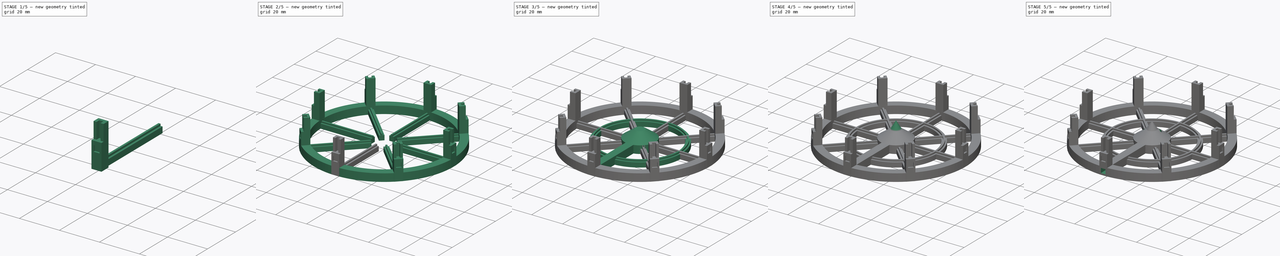
[diagram: build sequence overview — one tinted view per stage of 5, left to right]
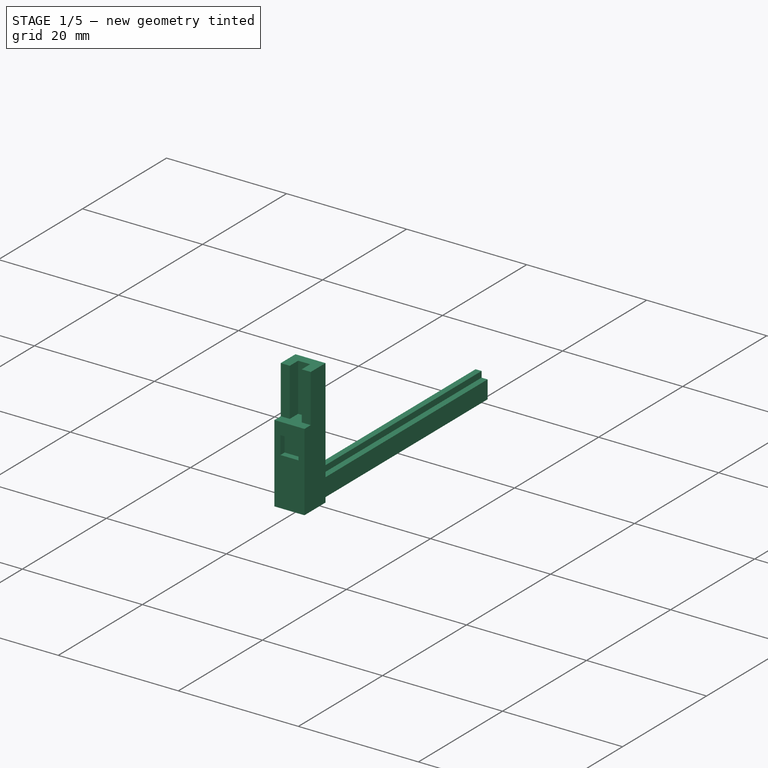
[diagram: stage 1 of 5 — iso view after this stage's code; geometry added in this stage tinted green]
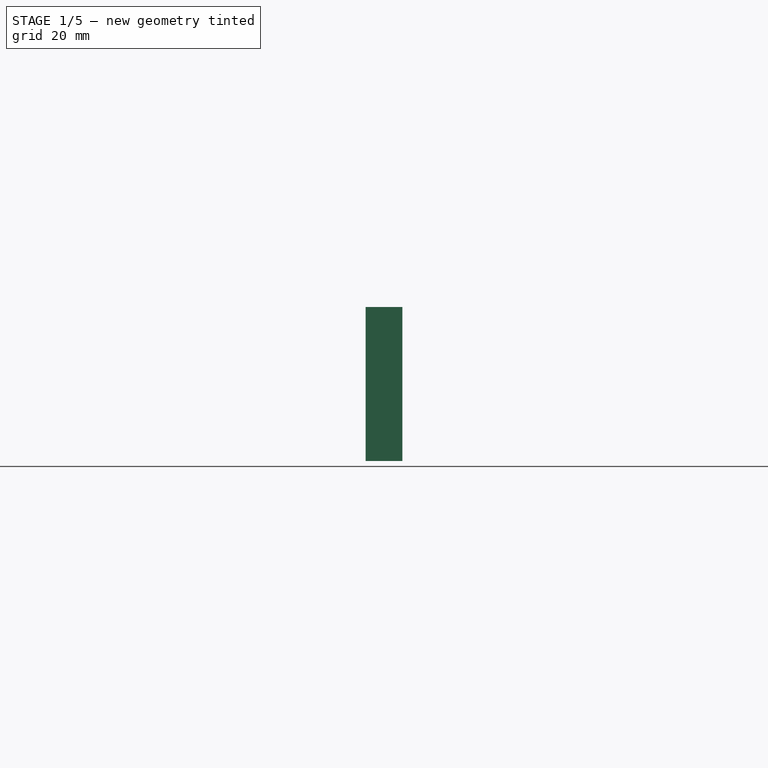
[diagram: stage 1 of 5 — front view after this stage's code; geometry added in this stage tinted green]
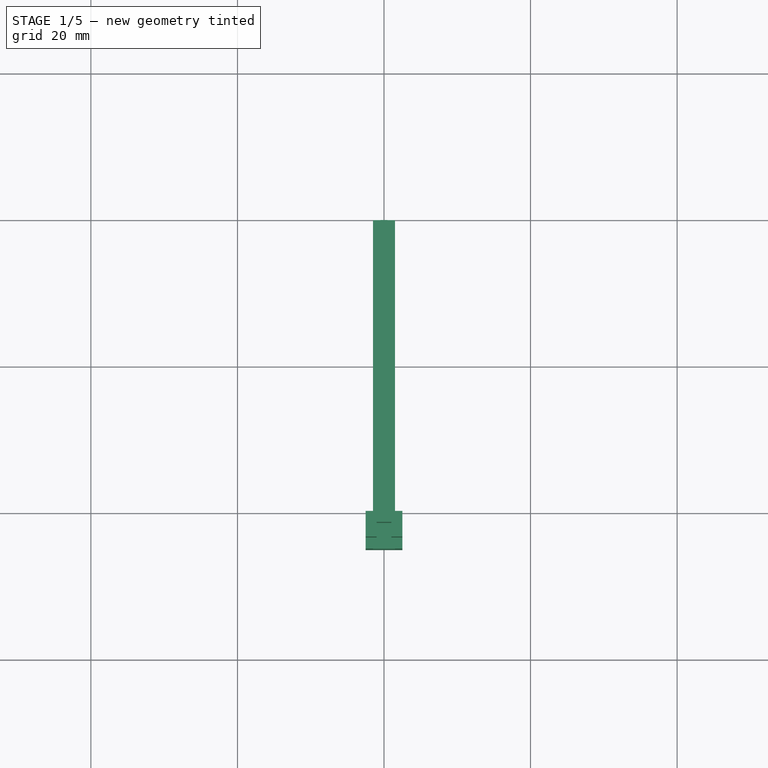
[diagram: stage 1 of 5 — top view after this stage's code; geometry added in this stage tinted green]
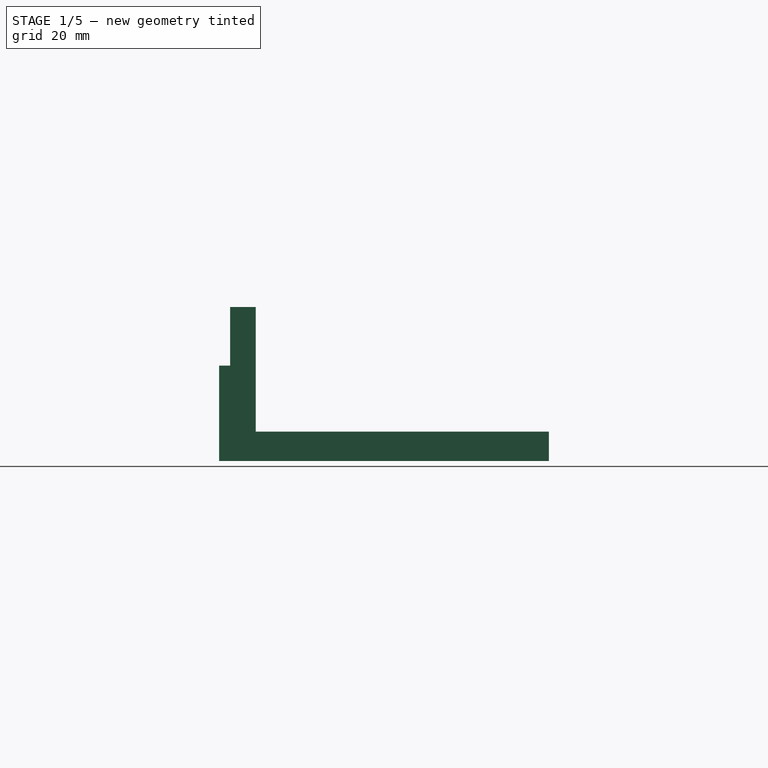
[diagram: stage 1 of 5 — right view after this stage's code; geometry added in this stage tinted green]
FCSTD DOCUMENT  (FreeCAD 0.18.4R)
Label: impeller-box-upside
License: All rights reserved
LicenseURL: http://en.wikipedia.org/wiki/All_rights_reserved
objects: Sketcher::SketchObject×21, PartDesign::Pad×11, PartDesign::Pocket×6, PartDesign::Body×4, PartDesign::AdditiveCone×2, PartDesign::FeatureBase×2, Part::FeaturePython×1, Part::Fuse×1
note: 67 computed .brp shape members not serialized (recipe doc carries the construction recipe); baked Part::Feature solids carry a one-line shape summary decoded from their .brp

FEATURE [PartDesign::Body] Body  label="center"
  Group = -> [Sketch,Pad,Cone,Cone001]
  Origin = -> Origin
  Tip = -> Cone001
FEATURE [Sketcher::SketchObject] Sketch001
  MapMode = 5
  Placement = pos=(0,0,0) rot=(1,0,0;1.5708rad)
  Support = -> [XZ_Plane001]
  sketch-geometry (4):
    g0: LineSegment StartX=-1.5 StartY=3 StartZ=0 EndX=1.5 EndY=3 EndZ=0
    g1: LineSegment StartX=1.5 StartY=3 StartZ=0 EndX=1.5 EndY=0 EndZ=0
    g2: LineSegment StartX=1.5 StartY=0 StartZ=0 EndX=-1.5 EndY=0 EndZ=0
    g3: LineSegment StartX=-1.5 StartY=0 StartZ=0 EndX=-1.5 EndY=3 EndZ=0
  constraints (12):
    c: Coincident(g0,g1)
    c: Coincident(g1,g2)
    c: Coincident(g2,g3)
    c: Coincident(g3,g0)
    c: Horizontal(g0)
    c: Horizontal(g2)
    c: Vertical(g1)
    c: Vertical(g3)
    c: DistanceX(g0,g0) = 3
    c: DistanceX(g2,g-1) = 1.5
    c: DistanceY(g1,g1) = 3
    c: DistanceY(g-1,g2) = 0
FEATURE [PartDesign::Pad] Pad001
  Length = 45
  Length2 = 100
  Placement = pos=(0,0,0) rot=(1,0,0;1.5708rad)
  Profile = -> Sketch001
  Type = 0
FEATURE [Sketcher::SketchObject] Sketch002
  MapMode = 5
  Placement = pos=(0,1.3e-15,3) rot=(0,0,1;3.14159rad)
  Support = -> [Pad001]
  sketch-geometry (4):
    g0: LineSegment StartX=-0.5 StartY=45 StartZ=0 EndX=0.5 EndY=45 EndZ=0
    g1: LineSegment StartX=0.5 StartY=45 StartZ=0 EndX=0.5 EndY=0 EndZ=0
    g2: LineSegment StartX=0.5 StartY=0 StartZ=0 EndX=-0.5 EndY=0 EndZ=0
    g3: LineSegment StartX=-0.5 StartY=0 StartZ=0 EndX=-0.5 EndY=45 EndZ=0
  constraints (12):
    c: Coincident(g0,g1)
    c: Coincident(g1,g2)
    c: Coincident(g2,g3)
    c: Coincident(g3,g0)
    c: Horizontal(g0)
    c: Horizontal(g2)
    c: Vertical(g1)
    c: Vertical(g3)
    c: DistanceX(g0,g0) = 1
    c: DistanceX(g2,g-1) = 0.5
    c: DistanceY(g1,g1) = 45
    c: DistanceY(g-1,g1) = 0
FEATURE [PartDesign::Pad] Pad002
  BaseFeature = -> Pad001
  Length = 1
  Length2 = 100
  Placement = pos=(0,0,0) rot=(1,0,0;1.5708rad)
  Profile = -> Sketch002
  Type = 0
FEATURE [Sketcher::SketchObject] Sketch003
  MapMode = 5
  Support = -> [XY_Plane001]
  sketch-geometry (4):
    g0: LineSegment StartX=-2.5 StartY=-40 StartZ=0 EndX=2.5 EndY=-40 EndZ=0
    g1: LineSegment StartX=2.5 StartY=-40 StartZ=0 EndX=2.5 EndY=-45 EndZ=0
    g2: LineSegment StartX=2.5 StartY=-45 StartZ=0 EndX=-2.5 EndY=-45 EndZ=0
    g3: LineSegment StartX=-2.5 StartY=-45 StartZ=0 EndX=-2.5 EndY=-40 EndZ=0
  constraints (12):
    c: Coincident(g0,g1)
    c: Coincident(g1,g2)
    c: Coincident(g2,g3)
    c: Coincident(g3,g0)
    c: Horizontal(g0)
    c: Horizontal(g2)
    c: Vertical(g1)
    c: Vertical(g3)
    c: DistanceX(g0,g0) = 5
    c: DistanceX(g-1,g0) = 2.5
    c: DistanceY(g1,g1) = 5
    c: DistanceY(g1,g-1) = 45
FEATURE [PartDesign::Pad] Pad003
  BaseFeature = -> Pad002
  Length = 13
  Length2 = 100
  Placement = pos=(0,0,0) rot=(1,0,0;1.5708rad)
  Profile = -> Sketch003
  Type = 0
FEATURE [Sketcher::SketchObject] Sketch004
  ExternalGeometry = -> [Pad003]
  MapMode = 5
  Placement = pos=(0,0,13) rot=(0,0,1;3.14159rad)
  Support = -> [Pad003]
  sketch-geometry (8):
    g0: LineSegment StartX=-2.5 StartY=40 StartZ=0 EndX=2.5 EndY=40 EndZ=0
    g1: LineSegment StartX=2.5 StartY=40 StartZ=0 EndX=2.5 EndY=43 EndZ=0
    g2: LineSegment StartX=2.5 StartY=43 StartZ=0 EndX=1 EndY=43 EndZ=0
    g3: LineSegment StartX=1 StartY=43 StartZ=0 EndX=1 EndY=41 EndZ=0
    g4: LineSegment StartX=1 StartY=41 StartZ=0 EndX=-1 EndY=41 EndZ=0
    g5: LineSegment StartX=-1 StartY=41 StartZ=0 EndX=-1 EndY=43 EndZ=0
    g6: LineSegment StartX=-1 StartY=43 StartZ=0 EndX=-2.5 EndY=43 EndZ=0
    g7: LineSegment StartX=-2.5 StartY=43 StartZ=0 EndX=-2.5 EndY=40 EndZ=0
  constraints (23):
    c: Coincident(g0,g1)
    c: Coincident(g1,g2)
    c: Coincident(g2,g3)
    c: Coincident(g3,g4)
    c: Coincident(g4,g5)
    c: Coincident(g5,g6)
    c: Coincident(g6,g7)
    c: Coincident(g7,g0)
    c: Coincident(g0,g-3)
    c: Vertical(g1)
    c: Vertical(g7)
    c: Vertical(g5)
    c: Vertical(g3)
    c: Horizontal(g2)
    c: Horizontal(g4)
    c: Horizontal(g6)
    c: Horizontal(g0)
    c: DistanceX(g0,g0) = 5
    c: DistanceX(g2,g2) = 1.5
    c: DistanceX(g6,g6) = 1.5
    c: DistanceY(g1,g1) = 3
    c: DistanceY(g7,g7) = 3
    c: DistanceY(g3,g3) = 2
FEATURE [Sketcher::SketchObject] Sketch005
  ExternalGeometry = -> [Pad003]
  MapMode = 5
  Placement = pos=(0,0,13) rot=(0,0,1;3.14159rad)
  Support = -> [Pad003]
  sketch-geometry (8):
    g0: LineSegment StartX=1 StartY=41.5 StartZ=0 EndX=1 EndY=43.5 EndZ=0
    g1: LineSegment StartX=1 StartY=43.5 StartZ=0 EndX=2.5 EndY=43.5 EndZ=0
    g2: LineSegment StartX=2.5 StartY=43.5 StartZ=0 EndX=2.5 EndY=40 EndZ=0
    g3: LineSegment StartX=2.5 StartY=40 StartZ=0 EndX=-2.5 EndY=40 EndZ=0
    g4: LineSegment StartX=-2.5 StartY=40 StartZ=0 EndX=-2.5 EndY=43.5 EndZ=0
    g5: LineSegment StartX=-2.5 StartY=43.5 StartZ=0 EndX=-1 EndY=43.5 EndZ=0
    g6: LineSegment StartX=-1 StartY=43.5 StartZ=0 EndX=-1 EndY=41.5 EndZ=0
    g7: LineSegment StartX=-1 StartY=41.5 StartZ=0 EndX=1 EndY=41.5 EndZ=0
  constraints (23):
    c: Coincident(g0,g1)
    c: Coincident(g1,g2)
    c: Coincident(g2,g3)
    c: Coincident(g3,g4)
    c: Coincident(g4,g5)
    c: Coincident(g5,g6)
    c: Coincident(g6,g7)
    c: Coincident(g7,g0)
    c: Coincident(g3,g-3)
    c: Vertical(g2)
    c: Vertical(g4)
    c: Vertical(g6)
    c: Vertical(g0)
    c: Horizontal(g1)
    c: Horizontal(g3)
    c: Horizontal(g7)
    c: Horizontal(g5)
    c: DistanceY(g2,g2) = 3.5
    c: DistanceY(g4,g4) = 3.5
    c: DistanceY(g6,g6) = 2
    c: DistanceX(g3,g3) = 5
    c: DistanceX(g5,g5) = 1.5
    c: DistanceX(g1,g1) = 1.5
FEATURE [PartDesign::Pad] Pad004
  BaseFeature = -> Pad003
  Length = 8
  Length2 = 100
  Placement = pos=(0,0,0) rot=(1,0,0;1.5708rad)
  Profile = -> Sketch005
  Type = 0
FEATURE [Sketcher::SketchObject] Sketch006
  ExternalGeometry = -> [Pad004]
  MapMode = 5
  Placement = pos=(0,-45,9.9e-15) rot=(1,0,0;1.5708rad)
  Support = -> [Pad004]
  sketch-geometry (4):
    g0: LineSegment StartX=-1.5 StartY=11 StartZ=0 EndX=1.5 EndY=11 EndZ=0
    g1: LineSegment StartX=1.5 StartY=11 StartZ=0 EndX=1.5 EndY=8 EndZ=0
    g2: LineSegment StartX=1.5 StartY=8 StartZ=0 EndX=-1.5 EndY=8 EndZ=0
    g3: LineSegment StartX=-1.5 StartY=8 StartZ=0 EndX=-1.5 EndY=11 EndZ=0
  constraints (12):
    c: Coincident(g0,g1)
    c: Coincident(g1,g2)
    c: Coincident(g2,g3)
    c: Coincident(g3,g0)
    c: Horizontal(g0)
    c: Horizontal(g2)
    c: Vertical(g1)
    c: Vertical(g3)
    c: DistanceY(g1,g1) = 3
    c: DistanceY(g0,g-3) = 2
    c: DistanceX(g0,g-3) = 1
    c: DistanceX(g0,g0) = 3
FEATURE [PartDesign::Pocket] Pocket
  BaseFeature = -> Pad004
  Length = 1
  Length2 = 100
  Placement = pos=(0,0,0) rot=(1,0,0;1.5708rad)
  Profile = -> Sketch006
  Type = 0
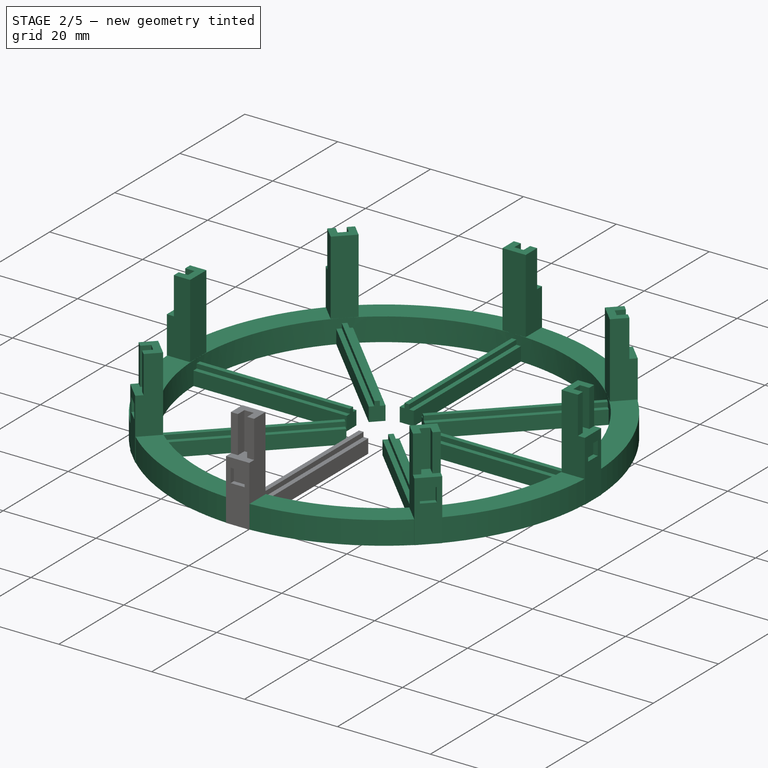
[diagram: stage 2 of 5 — iso view after this stage's code; geometry added in this stage tinted green]
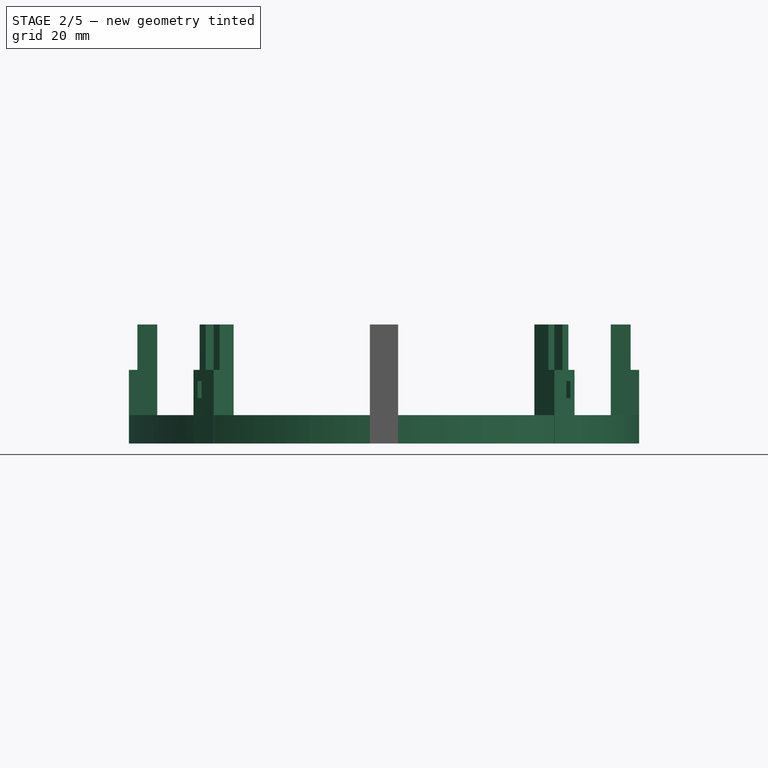
[diagram: stage 2 of 5 — front view after this stage's code; geometry added in this stage tinted green]
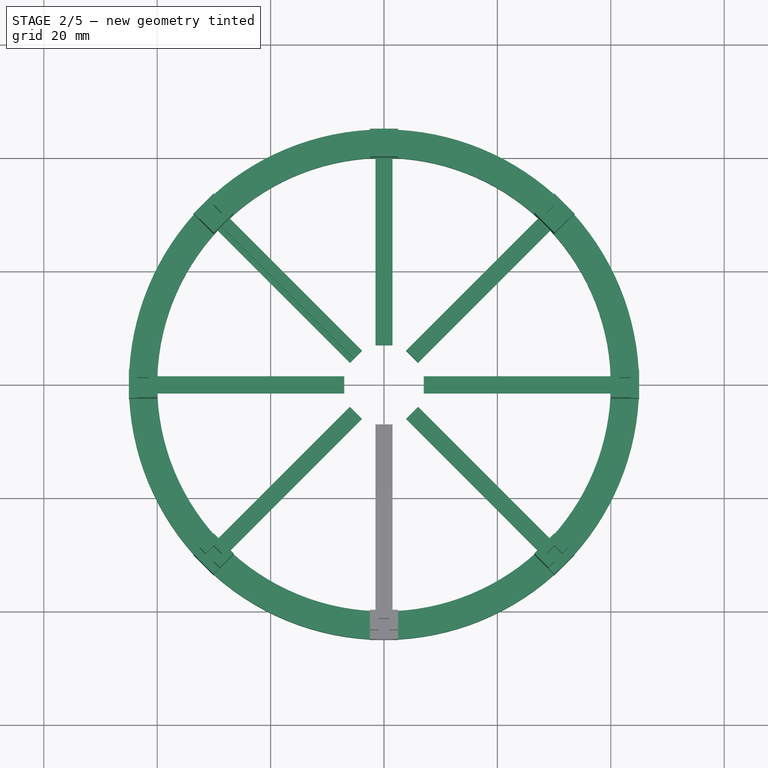
[diagram: stage 2 of 5 — top view after this stage's code; geometry added in this stage tinted green]
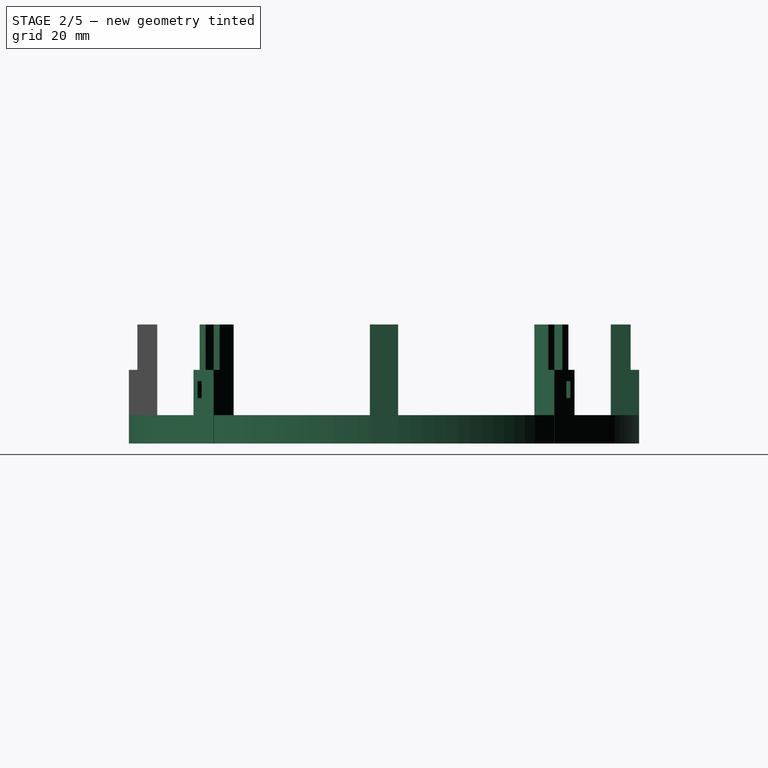
[diagram: stage 2 of 5 — right view after this stage's code; geometry added in this stage tinted green]
FEATURE [Sketcher::SketchObject] Sketch007
  MapMode = 5
  Placement = pos=(2.5,0,0) rot=(0.707107,0,0.707107;3.14159rad)
  Support = -> [Pocket]
FEATURE [Sketcher::SketchObject] Sketch008
  MapMode = 5
  Placement = pos=(0,-45,9.9e-15) rot=(1,0,0;1.5708rad)
  Support = -> [Pocket]
FEATURE [Sketcher::SketchObject] Sketch009
  MapMode = 5
  Support = -> [XY_Plane001]
  sketch-geometry (4):
    g0: LineSegment StartX=1.5 StartY=0 StartZ=0 EndX=-1.5 EndY=0 EndZ=0
    g1: LineSegment StartX=-1.5 StartY=0 StartZ=0 EndX=-1.5 EndY=-7 EndZ=0
    g2: LineSegment StartX=-1.5 StartY=-7 StartZ=0 EndX=1.5 EndY=-7 EndZ=0
    g3: LineSegment StartX=1.5 StartY=-7 StartZ=0 EndX=1.5 EndY=0 EndZ=0
  constraints (12):
    c: Coincident(g0,g1)
    c: Coincident(g1,g2)
    c: Coincident(g2,g3)
    c: Coincident(g3,g0)
    c: Horizontal(g0)
    c: Horizontal(g2)
    c: Vertical(g1)
    c: Vertical(g3)
    c: DistanceX(g0,g0) = 3
    c: DistanceY(g3,g3) = 7
    c: DistanceY(g0,g-1) = 0
    c: DistanceX(g0,g-1) = 1.5
FEATURE [PartDesign::Pocket] Pocket001
  BaseFeature = -> Pocket
  Length = 5
  Length2 = 100
  Placement = pos=(0,0,0) rot=(1,0,0;1.5708rad)
  Profile = -> Sketch009
  Reversed = true
  Type = 0
FEATURE [PartDesign::Body] Body001  label="edge"
  Group = -> [Sketch001,Pad001,Sketch002,Pad002,Sketch003,Pad003,Sketch004,Sketch005,Pad004,Sketch006,Pocket,Sketch007,Sketch008,Sketch009,Pocket001]
  Origin = -> Origin001
  Tip = -> Pocket001
FEATURE [Part::FeaturePython] Array  # Draft array (typed FeaturePython)
  Angle = 360
  ArrayType = 1
  Axis = (0,0,1)
  Base = -> Body001
  Center = (0,0,1)
  Fuse = false
  IntervalAxis = (0,0,0)
  IntervalX = (1,0,0)
  IntervalY = (0,1,0)
  IntervalZ = (0,0,1)
  NumberPolar = 8
  NumberX = 2
  NumberY = 2
  NumberZ = 1
FEATURE [PartDesign::FeatureBase] BaseFeature
  BaseFeature = -> Array
FEATURE [Sketcher::SketchObject] Sketch010
  MapMode = 5
  Support = -> [XY_Plane002]
  sketch-geometry (2):
    g0: Circle CenterX=0 CenterY=0 CenterZ=0 NormalX=0 NormalY=0 NormalZ=1 AngleXU=0 Radius=45
    g1: Circle CenterX=0 CenterY=0 CenterZ=0 NormalX=0 NormalY=0 NormalZ=1 AngleXU=0 Radius=40
  constraints (4):
    c: Coincident(g0,g-1)
    c: Coincident(g0,g1)
    c: Radius(g0) = 45
    c: Radius(g1) = 40
FEATURE [PartDesign::Pad] Pad005
  BaseFeature = -> BaseFeature
  Length = 5
  Length2 = 100
  Profile = -> Sketch010
  Type = 0
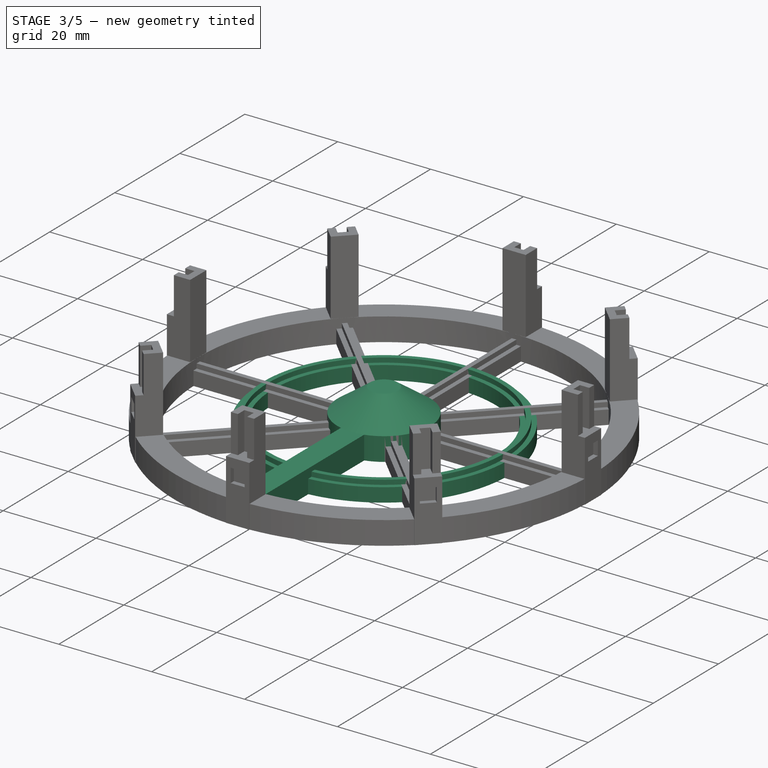
[diagram: stage 3 of 5 — iso view after this stage's code; geometry added in this stage tinted green]
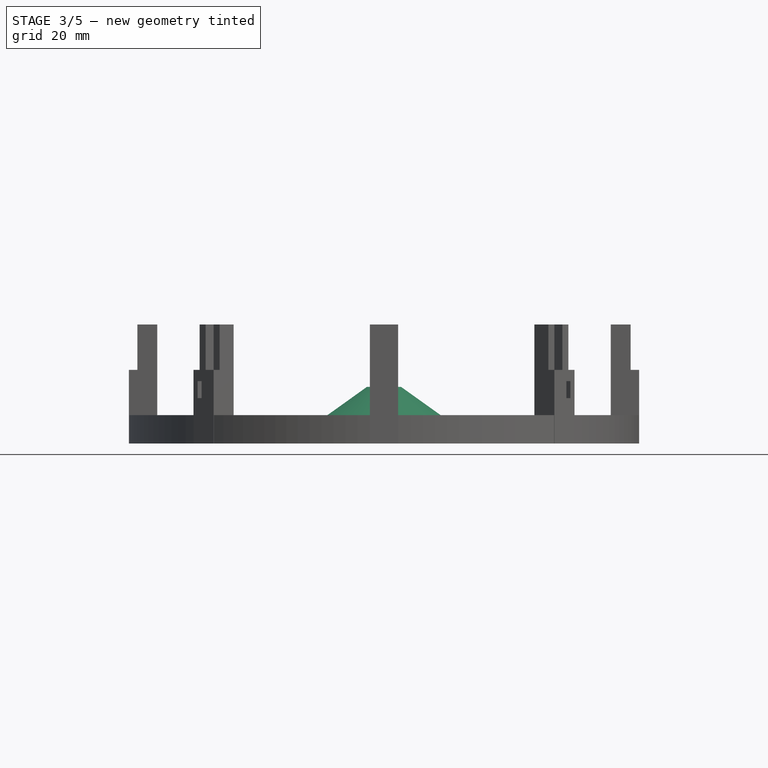
[diagram: stage 3 of 5 — front view after this stage's code; geometry added in this stage tinted green]
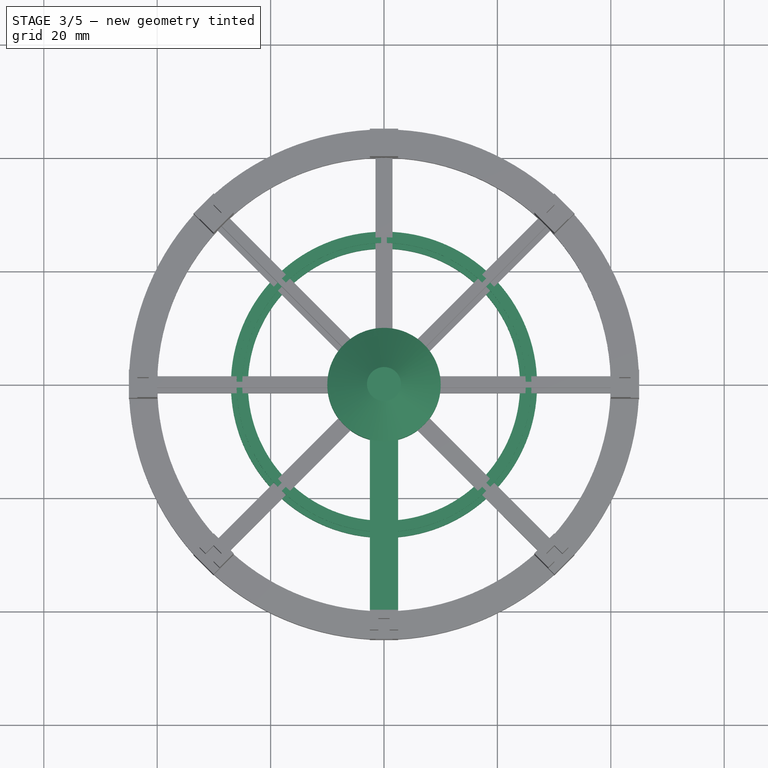
[diagram: stage 3 of 5 — top view after this stage's code; geometry added in this stage tinted green]
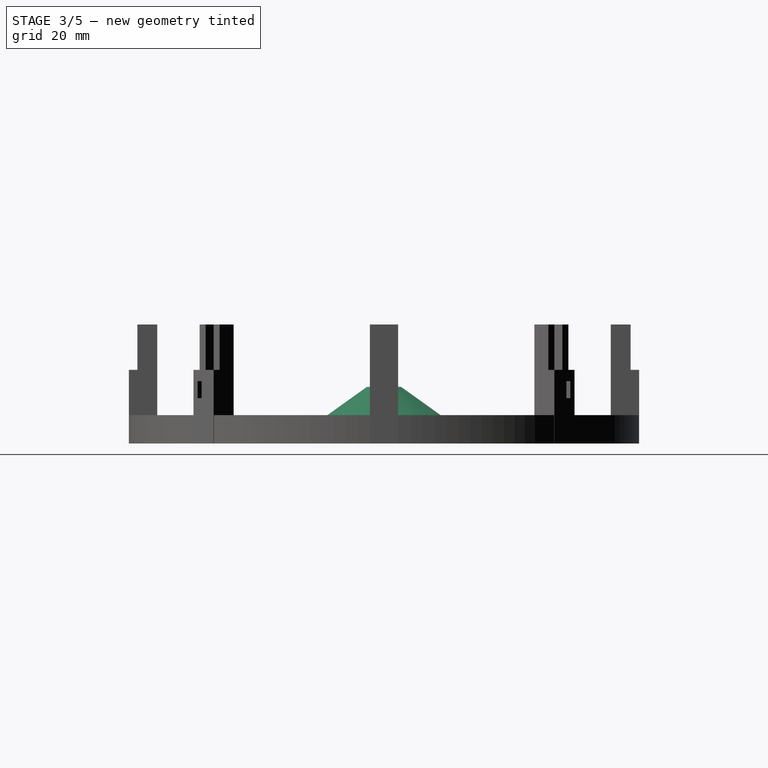
[diagram: stage 3 of 5 — right view after this stage's code; geometry added in this stage tinted green]
FEATURE [Sketcher::SketchObject] Sketch
  MapMode = 5
  Support = -> [XY_Plane]
  sketch-geometry (1):
    g0: Circle CenterX=0 CenterY=0 CenterZ=0 NormalX=0 NormalY=0 NormalZ=1 AngleXU=0 Radius=10
  constraints (2):
    c: Radius(g0) = 10
    c: Coincident(g0,g-1)
FEATURE [PartDesign::Pad] Pad
  Length = 5
  Length2 = 100
  Profile = -> Sketch
  Type = 0
FEATURE [PartDesign::AdditiveCone] Cone
  Angle = 360
  AttacherType = Attacher::AttachEngine3D
  BaseFeature = -> Pad
  Height = 5
  MapMode = 5
  Placement = pos=(0,0,5) rot=(0,0,1;0rad)
  Radius1 = 10
  Radius2 = 3
  Support = -> [Pad]
FEATURE [Sketcher::SketchObject] Sketch011
  MapMode = 5
  Support = -> [XY_Plane002]
  sketch-geometry (2):
    g0: Circle CenterX=0 CenterY=0 CenterZ=0 NormalX=0 NormalY=0 NormalZ=1 AngleXU=0 Radius=27
    g1: Circle CenterX=0 CenterY=0 CenterZ=0 NormalX=0 NormalY=0 NormalZ=1 AngleXU=0 Radius=24
  constraints (4):
    c: Coincident(g0,g-1)
    c: Coincident(g1,g0)
    c: Radius(g1) = 24
    c: Radius(g0) = 27
FEATURE [PartDesign::Pad] Pad006
  BaseFeature = -> Pad005
  Length = 3
  Length2 = 100
  Profile = -> Sketch011
  Type = 0
FEATURE [Sketcher::SketchObject] Sketch012
  AttachmentOffset = pos=(0,0,3) rot=(0,0,1;0rad)
  MapMode = 5
  Placement = pos=(0,0,3) rot=(0,0,1;0rad)
  Support = -> [XY_Plane002]
  sketch-geometry (2):
    g0: Circle CenterX=0 CenterY=0 CenterZ=0 NormalX=0 NormalY=0 NormalZ=1 AngleXU=0 Radius=25
    g1: Circle CenterX=0 CenterY=0 CenterZ=0 NormalX=0 NormalY=0 NormalZ=1 AngleXU=0 Radius=26
  constraints (4):
    c: Radius(g0) = 25
    c: Radius(g1) = 26
    c: Coincident(g0,g-1)
    c: Coincident(g1,g0)
FEATURE [PartDesign::Pad] Pad007
  BaseFeature = -> Pad006
  Length = 1
  Length2 = 100
  Profile = -> Sketch012
  Type = 0
FEATURE [Sketcher::SketchObject] Sketch013
  AttachmentOffset = pos=(0,0,7) rot=(0,0,1;0rad)
  MapMode = 5
  Placement = pos=(0,-7,-1.6e-15) rot=(1,0,0;1.5708rad)
  Support = -> [XZ_Plane002]
  sketch-geometry (4):
    g0: LineSegment StartX=-2.5 StartY=5 StartZ=0 EndX=2.5 EndY=5 EndZ=0
    g1: LineSegment StartX=2.5 StartY=5 StartZ=0 EndX=2.5 EndY=0 EndZ=0
    g2: LineSegment StartX=2.5 StartY=0 StartZ=0 EndX=-2.5 EndY=0 EndZ=0
    g3: LineSegment StartX=-2.5 StartY=0 StartZ=0 EndX=-2.5 EndY=5 EndZ=0
  constraints (12):
    c: Coincident(g0,g1)
    c: Coincident(g1,g2)
    c: Coincident(g2,g3)
    c: Coincident(g3,g0)
    c: Horizontal(g0)
    c: Horizontal(g2)
    c: Vertical(g1)
    c: Vertical(g3)
    c: DistanceX(g0,g0) = 5
    c: DistanceX(g-1,g1) = 2.5
    c: DistanceY(g1,g1) = 5
    c: DistanceY(g-1,g1) = 0
FEATURE [PartDesign::Pad] Pad008
  BaseFeature = -> Pad007
  Length = 38
  Length2 = 100
  Profile = -> Sketch013
  Type = 0
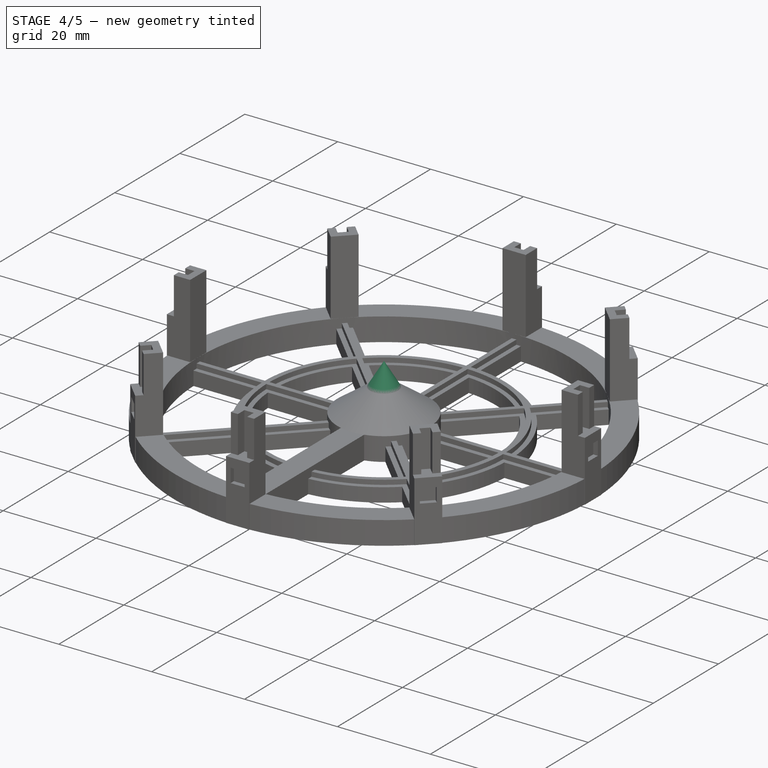
[diagram: stage 4 of 5 — iso view after this stage's code; geometry added in this stage tinted green]
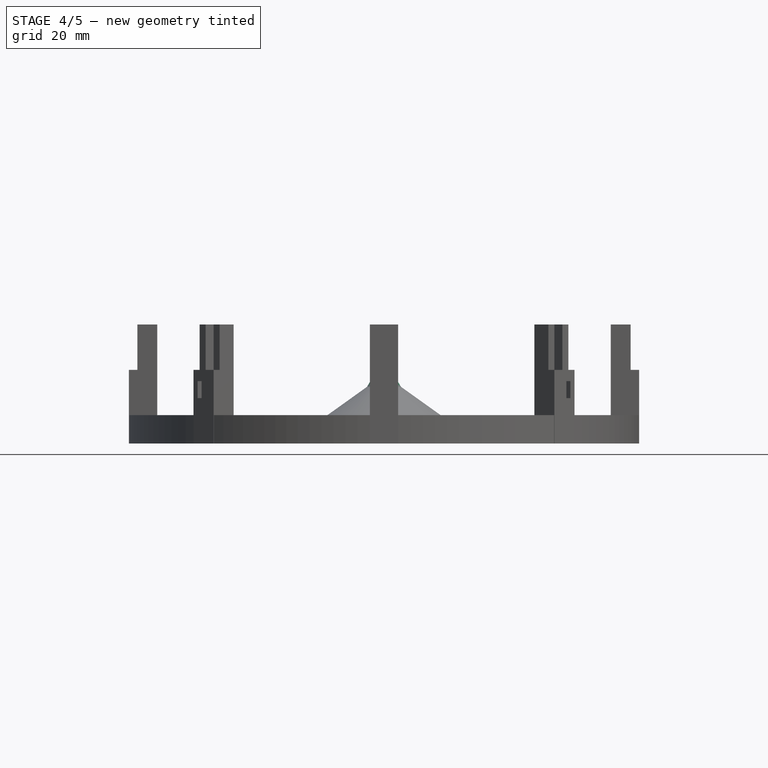
[diagram: stage 4 of 5 — front view after this stage's code; geometry added in this stage tinted green]
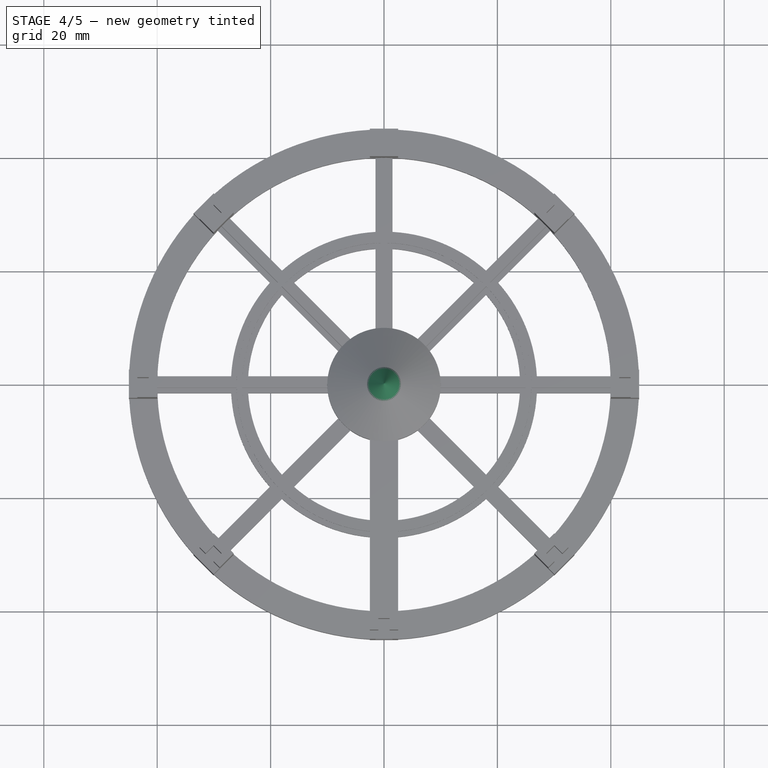
[diagram: stage 4 of 5 — top view after this stage's code; geometry added in this stage tinted green]
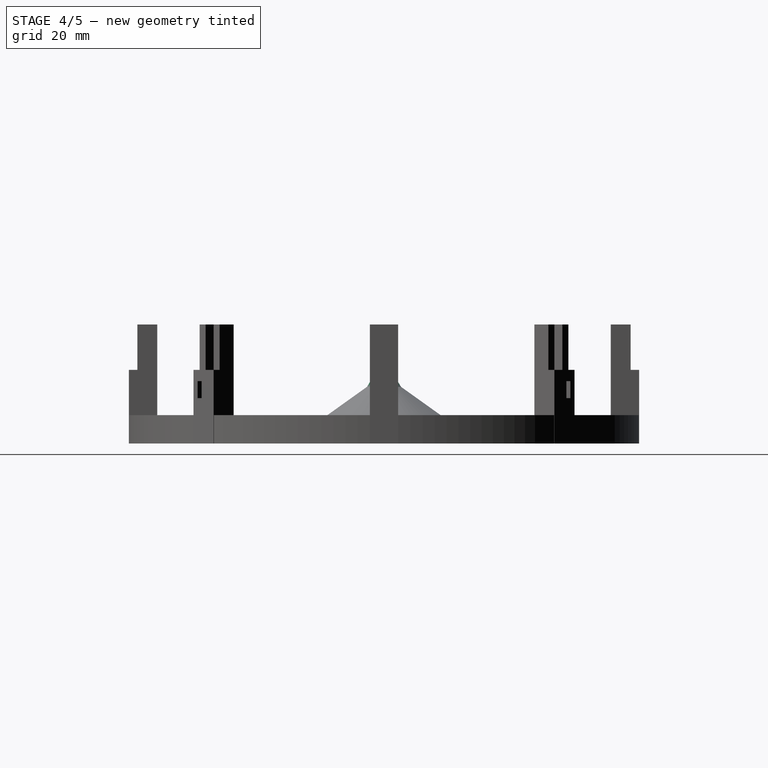
[diagram: stage 4 of 5 — right view after this stage's code; geometry added in this stage tinted green]
FEATURE [PartDesign::AdditiveCone] Cone001
  Angle = 360
  AttacherType = Attacher::AttachEngine3D
  BaseFeature = -> Cone
  Height = 5
  MapMode = 5
  Placement = pos=(0,0,10) rot=(0,0,1;0rad)
  Radius1 = 3
  Radius2 = 0
  Support = -> [Cone]
FEATURE [PartDesign::Body] Body002  label="edges"
  BaseFeature = -> Array
  Group = -> [BaseFeature,Sketch010,Pad005,Sketch011,Pad006,Sketch012,Pad007,Sketch013,Pad008]
  Origin = -> Origin002
  Tip = -> Pad008
FEATURE [Part::Fuse] Fusion  label="body"
  Base = -> Body
  Tool = -> Body002
FEATURE [PartDesign::FeatureBase] BaseFeature001
  BaseFeature = -> Fusion
FEATURE [Sketcher::SketchObject] Sketch014
  MapMode = 5
  Placement = pos=(0,0,0) rot=(1,0,0;3.14159rad)
  Support = -> [BaseFeature001]
  sketch-geometry (1):
    g0: Circle CenterX=0 CenterY=0 CenterZ=0 NormalX=0 NormalY=0 NormalZ=1 AngleXU=0 Radius=9
  constraints (2):
    c: Radius(g0) = 9
    c: Coincident(g-1,g0)
FEATURE [PartDesign::Pocket] Pocket002
  BaseFeature = -> BaseFeature001
  Length = 5
  Length2 = 100
  Profile = -> Sketch014
  Type = 0
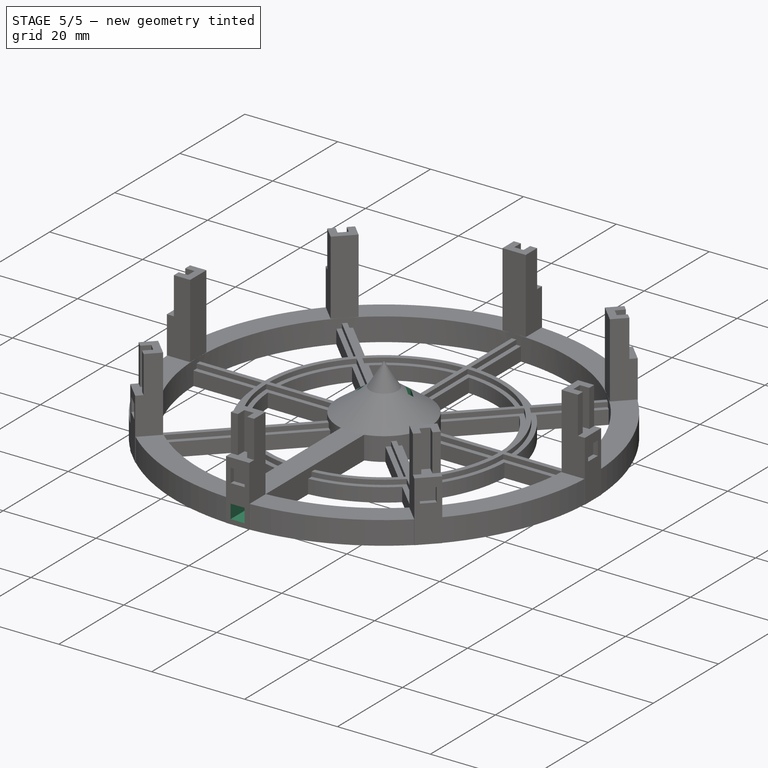
[diagram: stage 5 of 5 — iso view after this stage's code; geometry added in this stage tinted green]
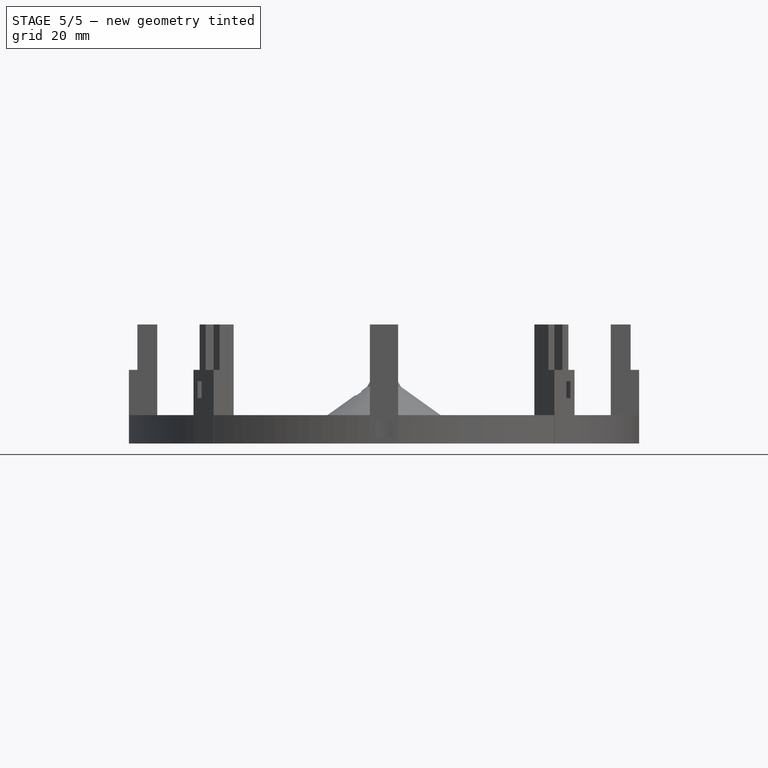
[diagram: stage 5 of 5 — front view after this stage's code; geometry added in this stage tinted green]
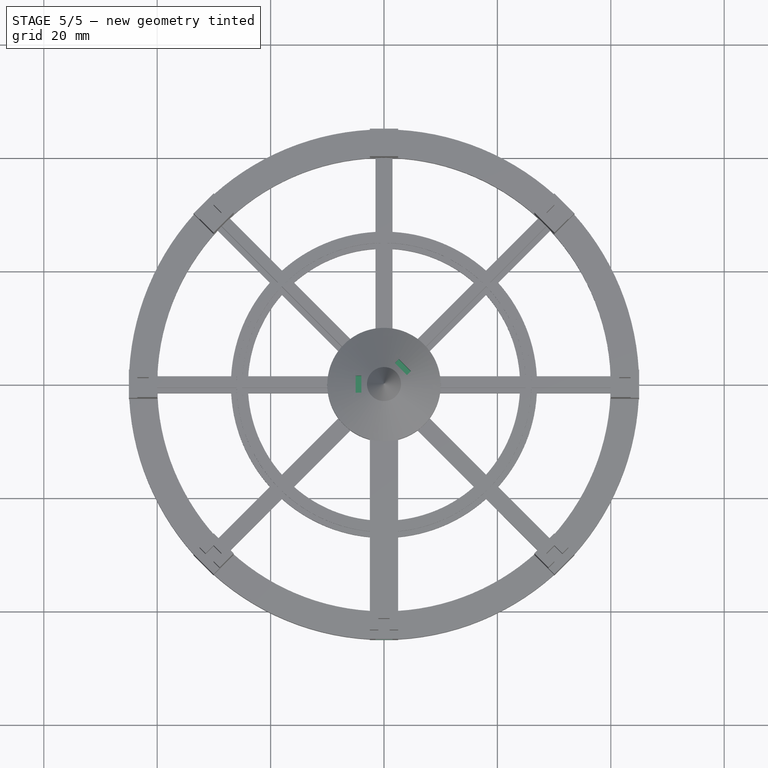
[diagram: stage 5 of 5 — top view after this stage's code; geometry added in this stage tinted green]
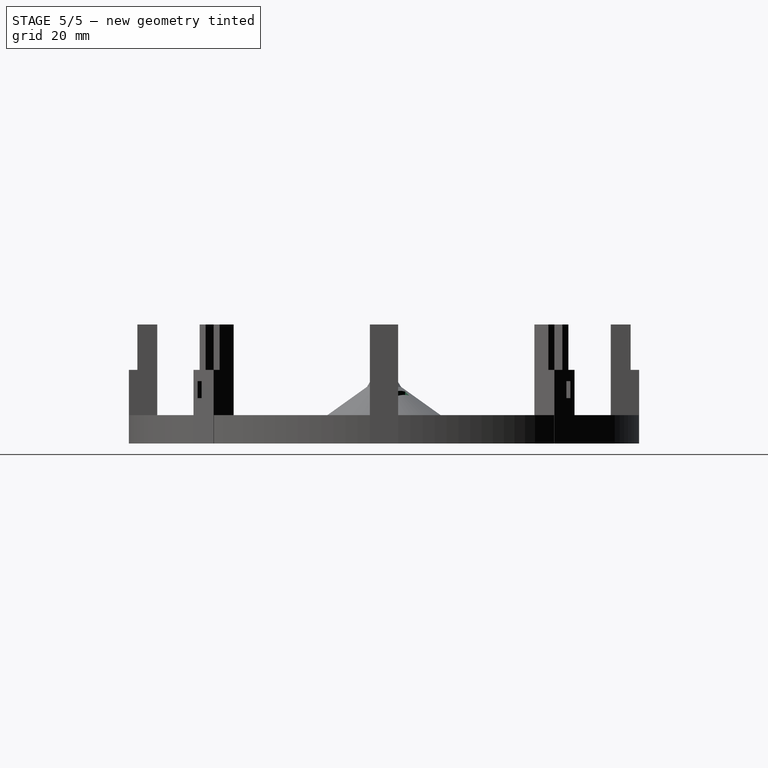
[diagram: stage 5 of 5 — right view after this stage's code; geometry added in this stage tinted green]
FEATURE [Sketcher::SketchObject] Sketch015
  MapMode = 5
  Placement = pos=(0,0,0) rot=(1,0,0;1.5708rad)
  Support = -> [XZ_Plane003]
  sketch-geometry (4):
    g0: LineSegment StartX=-1.5 StartY=4 StartZ=0 EndX=1.5 EndY=4 EndZ=0
    g1: LineSegment StartX=1.5 StartY=4 StartZ=0 EndX=1.5 EndY=1 EndZ=0
    g2: LineSegment StartX=1.5 StartY=1 StartZ=0 EndX=-1.5 EndY=1 EndZ=0
    g3: LineSegment StartX=-1.5 StartY=1 StartZ=0 EndX=-1.5 EndY=4 EndZ=0
  constraints (12):
    c: Coincident(g0,g1)
    c: Coincident(g1,g2)
    c: Coincident(g2,g3)
    c: Coincident(g3,g0)
    c: Horizontal(g0)
    c: Horizontal(g2)
    c: Vertical(g1)
    c: Vertical(g3)
    c: DistanceX(g0,g0) = 3
    c: DistanceX(g-1,g2) = -1.5
    c: DistanceY(g1,g1) = 3
    c: DistanceY(g-1,g1) = 1
FEATURE [Sketcher::SketchObject] Sketch016
  AttachmentOffset = pos=(0,0,8) rot=(0,0,1;0rad)
  MapMode = 5
  Placement = pos=(0,-8,-1.8e-15) rot=(1,0,0;1.5708rad)
  Support = -> [XZ_Plane003]
  sketch-geometry (4):
    g0: LineSegment StartX=-2.5 StartY=5 StartZ=0 EndX=2.5 EndY=5 EndZ=0
    g1: LineSegment StartX=2.5 StartY=5 StartZ=0 EndX=2.5 EndY=0 EndZ=0
    g2: LineSegment StartX=2.5 StartY=0 StartZ=0 EndX=-2.5 EndY=0 EndZ=0
    g3: LineSegment StartX=-2.5 StartY=0 StartZ=0 EndX=-2.5 EndY=5 EndZ=0
  constraints (12):
    c: Coincident(g0,g1)
    c: Coincident(g1,g2)
    c: Coincident(g2,g3)
    c: Coincident(g3,g0)
    c: Horizontal(g0)
    c: Horizontal(g2)
    c: Vertical(g1)
    c: Vertical(g3)
    c: DistanceX(g0,g0) = 5
    c: DistanceX(g2,g-1) = 2.5
    c: DistanceY(g1,g1) = 5
    c: DistanceY(g1,g-1) = 0
FEATURE [PartDesign::Pad] Pad009
  BaseFeature = -> Pocket002
  Length = 10
  Length2 = 100
  Profile = -> Sketch016
  Type = 0
FEATURE [PartDesign::Pocket] Pocket003
  BaseFeature = -> Pad009
  Length = 100
  Length2 = 100
  Profile = -> Sketch015
  Reversed = true
  Type = 0
FEATURE [Sketcher::SketchObject] Sketch017
  MapMode = 5
  Support = -> [XY_Plane003]
  sketch-geometry (8):
    g0: LineSegment StartX=-10 StartY=-1 StartZ=0 EndX=10 EndY=-1 EndZ=0
    g1: LineSegment StartX=10 StartY=-1 StartZ=0 EndX=10 EndY=1 EndZ=0
    g2: LineSegment StartX=10 StartY=1 StartZ=0 EndX=1 EndY=1 EndZ=0
    g3: LineSegment StartX=1 StartY=1 StartZ=0 EndX=1 EndY=10 EndZ=0
    g4: LineSegment StartX=1 StartY=10 StartZ=0 EndX=-1 EndY=10 EndZ=0
    g5: LineSegment StartX=-1 StartY=10 StartZ=0 EndX=-1 EndY=1 EndZ=0
    g6: LineSegment StartX=-1 StartY=1 StartZ=0 EndX=-10 EndY=1 EndZ=0
    g7: LineSegment StartX=-10 StartY=-1 StartZ=0 EndX=-10 EndY=1 EndZ=0
  constraints (24):
    c: Coincident(g0,g1)
    c: Coincident(g1,g2)
    c: Coincident(g2,g3)
    c: Coincident(g3,g4)
    c: Coincident(g4,g5)
    c: Coincident(g5,g6)
    c: Horizontal(g4)
    c: Vertical(g1)
    c: Vertical(g7)
    c: Vertical(g5)
    c: Vertical(g3)
    c: Horizontal(g2)
    c: Horizontal(g6)
    c: Coincident(g6,g7)
    c: DistanceX(g4,g-1) = 1
    c: DistanceX(g4,g3) = 2
    c: DistanceX(g-1,g1) = 10
    c: DistanceX(g6,g-1) = 10
    c: DistanceY(g-1,g3) = 10
    c: DistanceY(g1,g1) = 2
    c: DistanceY(g7,g7) = 2
    c: DistanceY(g-1,g6) = 1
    c: DistanceY(g-1,g2) = 1
    c: Coincident(g0,g7)
FEATURE [PartDesign::Pocket] Pocket004
  BaseFeature = -> Pocket003
  Length = 1
  Length2 = 100
  Profile = -> Sketch017
  Reversed = true
  Type = 0
FEATURE [Sketcher::SketchObject] Sketch018
  MapMode = 5
  Placement = pos=(0,0,5) rot=(1,0,0;3.14159rad)
  Support = -> [Pocket004]
  sketch-geometry (8):
    g0: LineSegment StartX=-5 StartY=1.5 StartZ=0 EndX=-4 EndY=1.5 EndZ=0
    g1: LineSegment StartX=-4 StartY=1.5 StartZ=0 EndX=-4 EndY=-1.5 EndZ=0
    g2: LineSegment StartX=-4 StartY=-1.5 StartZ=0 EndX=-5 EndY=-1.5 EndZ=0
    g3: LineSegment StartX=-5 StartY=-1.5 StartZ=0 EndX=-5 EndY=1.5 EndZ=0
    g4: LineSegment StartX=1.90957 StartY=-3.72802 StartZ=0 EndX=4.03089 EndY=-1.6067 EndZ=0
    g5: LineSegment StartX=4.03089 StartY=-1.6067 StartZ=0 EndX=4.738 EndY=-2.31381 EndZ=0
    g6: LineSegment StartX=4.738 StartY=-2.31381 StartZ=0 EndX=2.61668 EndY=-4.43513 EndZ=0
    g7: LineSegment StartX=2.61668 StartY=-4.43513 StartZ=0 EndX=1.90957 EndY=-3.72802 EndZ=0
  constraints (22):
    c: Coincident(g0,g1)
    c: Coincident(g1,g2)
    c: Coincident(g2,g3)
    c: Coincident(g3,g0)
    c: Horizontal(g0)
    c: Horizontal(g2)
    c: Vertical(g1)
    c: Vertical(g3)
    c: DistanceX(g0,g0) = 1
    c: DistanceX(g0,g-1) = 5
    c: DistanceY(g1,g1) = 3
    c: DistanceY(g-1,g0) = 1.5
    c: Coincident(g4,g5)
    c: Coincident(g5,g6)
    c: Coincident(g6,g7)
    c: Coincident(g7,g4)
    c: Parallel(g4,g6)
    c: Parallel(g7,g5)
    c: Distance(g4) = 3
    c: Distance(g5) = 1
    c: Perpendicular(g4,g7)
    c: Angle(g-1,g4) = 0.785398
FEATURE [PartDesign::Pocket] Pocket005
  BaseFeature = -> Pocket004
  Length = 10
  Length2 = 100
  Profile = -> Sketch018
  Type = 0
FEATURE [Sketcher::SketchObject] Sketch019
  MapMode = 5
  Placement = pos=(0,0,5) rot=(1,0,0;3.14159rad)
  Support = -> [Pocket005]
  sketch-geometry (4):
    g0: LineSegment StartX=-5.44177 StartY=3.75507 StartZ=0 EndX=5.55823 EndY=3.75507 EndZ=0
    g1: LineSegment StartX=5.55823 StartY=3.75507 StartZ=0 EndX=5.55823 EndY=-5.24493 EndZ=0
    g2: LineSegment StartX=5.55823 StartY=-5.24493 StartZ=0 EndX=-5.44177 EndY=-5.24493 EndZ=0
    g3: LineSegment StartX=-5.44177 StartY=-5.24493 StartZ=0 EndX=-5.44177 EndY=3.75507 EndZ=0
  constraints (10):
    c: Coincident(g0,g1)
    c: Coincident(g1,g2)
    c: Coincident(g2,g3)
    c: Coincident(g3,g0)
    c: Horizontal(g0)
    c: Horizontal(g2)
    c: Vertical(g1)
    c: Vertical(g3)
    c: DistanceX(g0,g0) = 11
    c: DistanceY(g1,g1) = 9
FEATURE [PartDesign::Pad] Pad010
  BaseFeature = -> Pocket005
  Length = 0.5
  Length2 = 100
  Profile = -> Sketch019
  Reversed = true
  Type = 0
FEATURE [Sketcher::SketchObject] Sketch020
  MapMode = 5
  Placement = pos=(0,0,0) rot=(1,0,0;3.14159rad)
  Support = -> [Pad010]
FEATURE [PartDesign::Body] Body003
  BaseFeature = -> Fusion
  Group = -> [BaseFeature001,Sketch014,Pocket002,Sketch015,Sketch016,Pad009,Pocket003,Sketch017,Pocket004,Sketch018,Pocket005,Sketch019,Pad010,Sketch020]
  Origin = -> Origin003
  Tip = -> Pad010
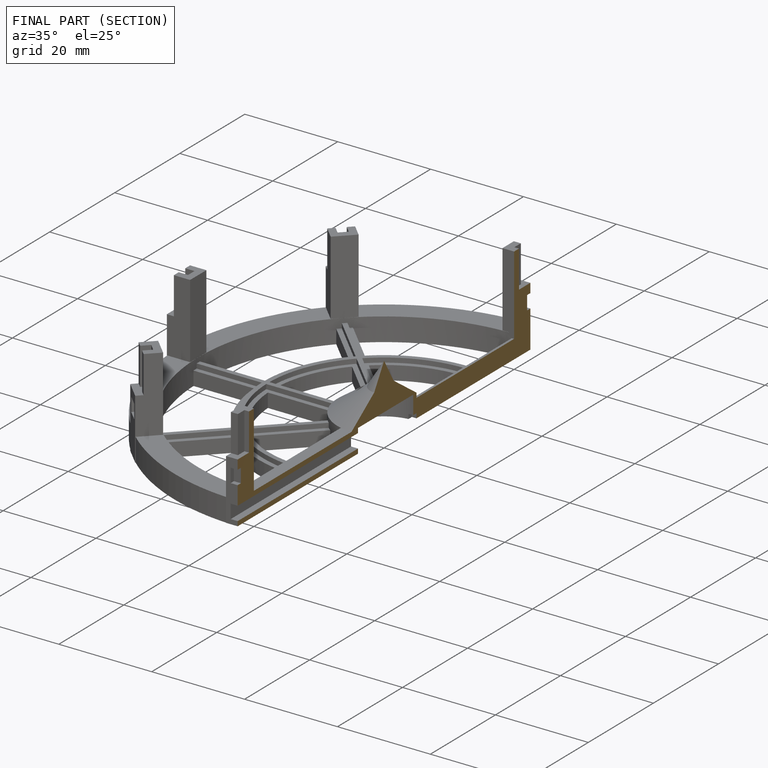
[diagram: finished part — half-section view (interior)]
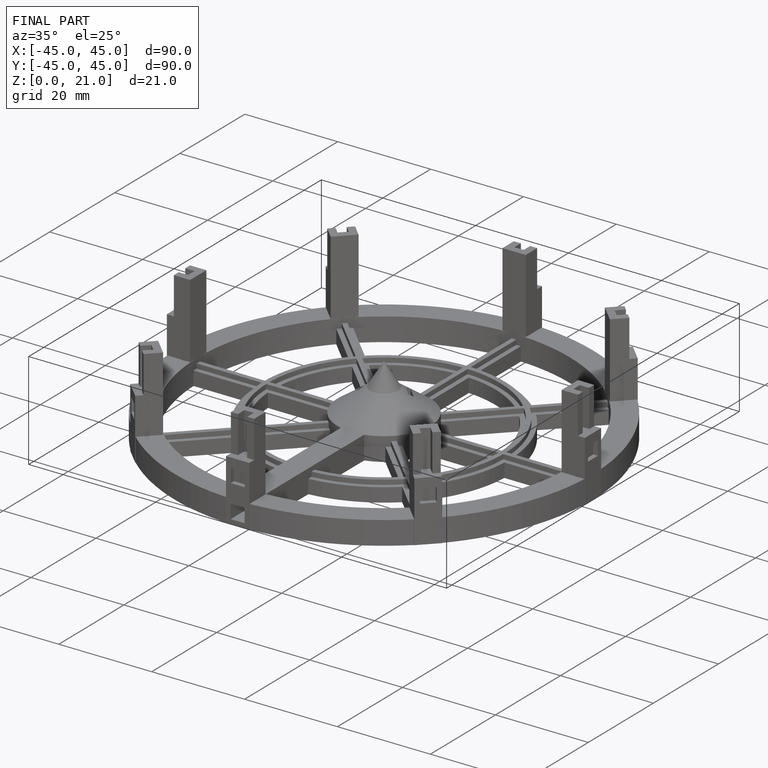
[diagram: finished part — iso view with bounding-box wireframe]
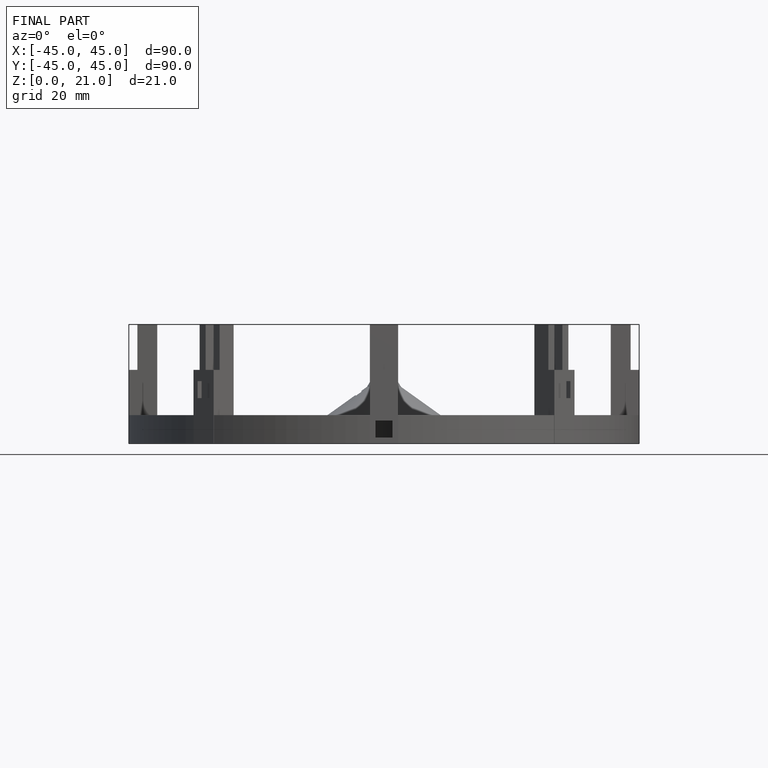
[diagram: finished part — front view with bounding-box wireframe]
